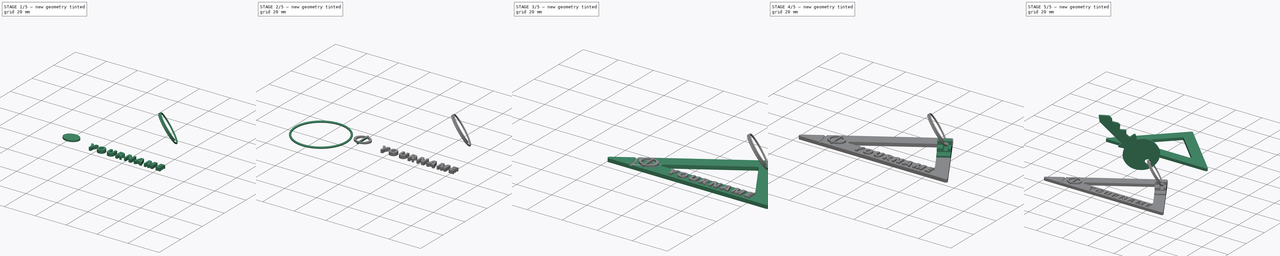
[diagram: build sequence overview — one tinted view per stage of 5, left to right]
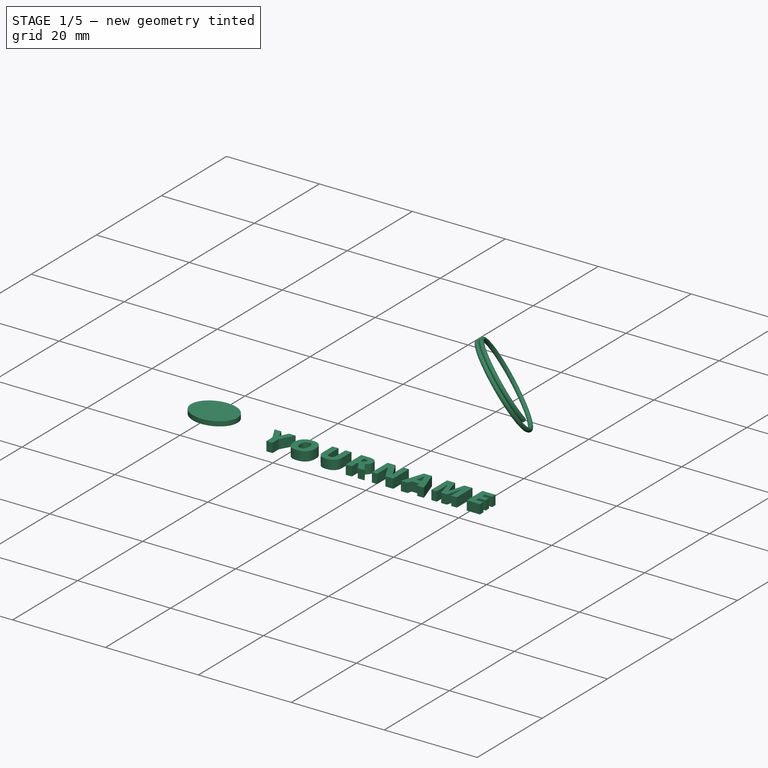
[diagram: stage 1 of 5 — iso view after this stage's code; geometry added in this stage tinted green]
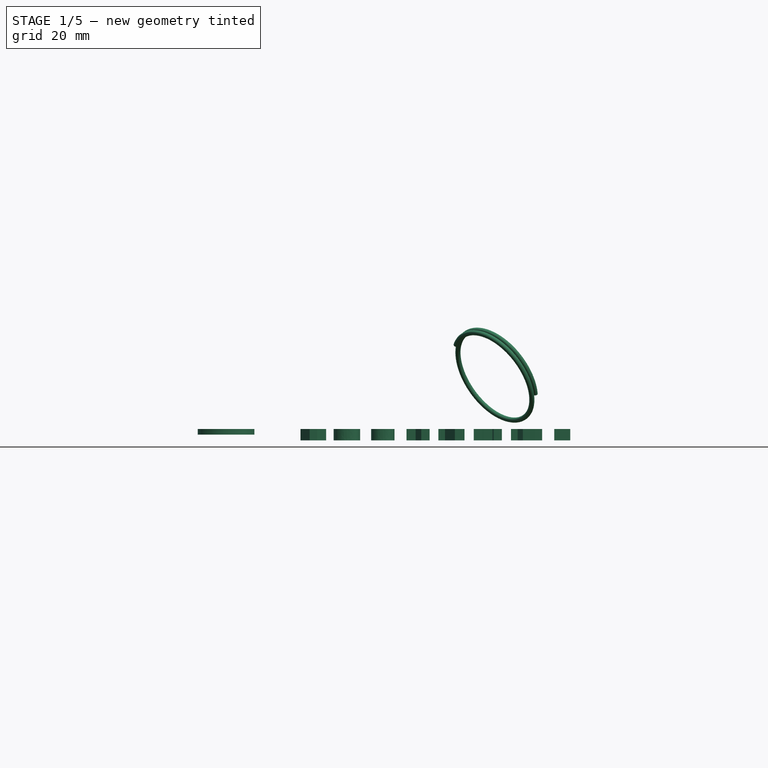
[diagram: stage 1 of 5 — front view after this stage's code; geometry added in this stage tinted green]
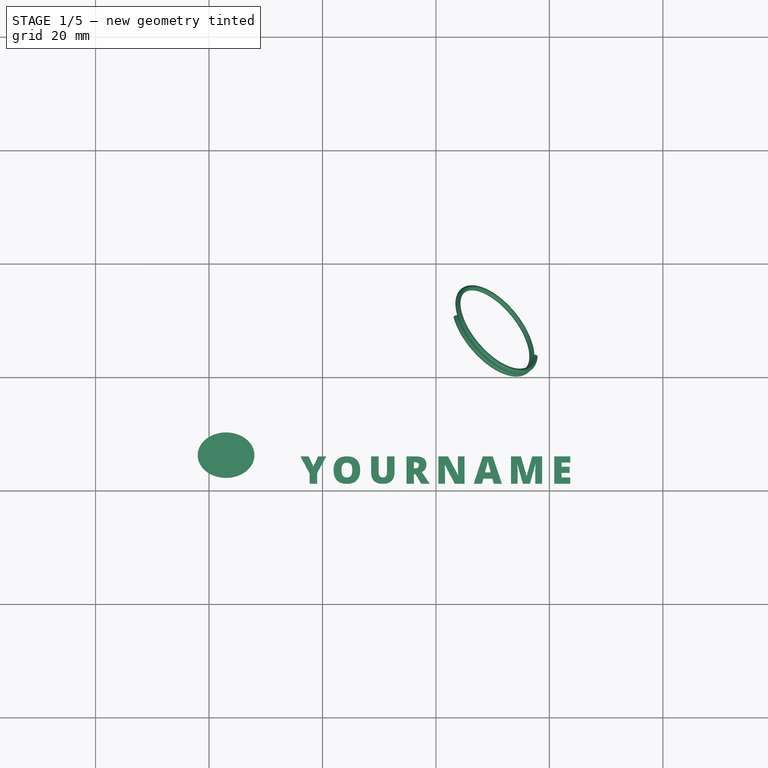
[diagram: stage 1 of 5 — top view after this stage's code; geometry added in this stage tinted green]
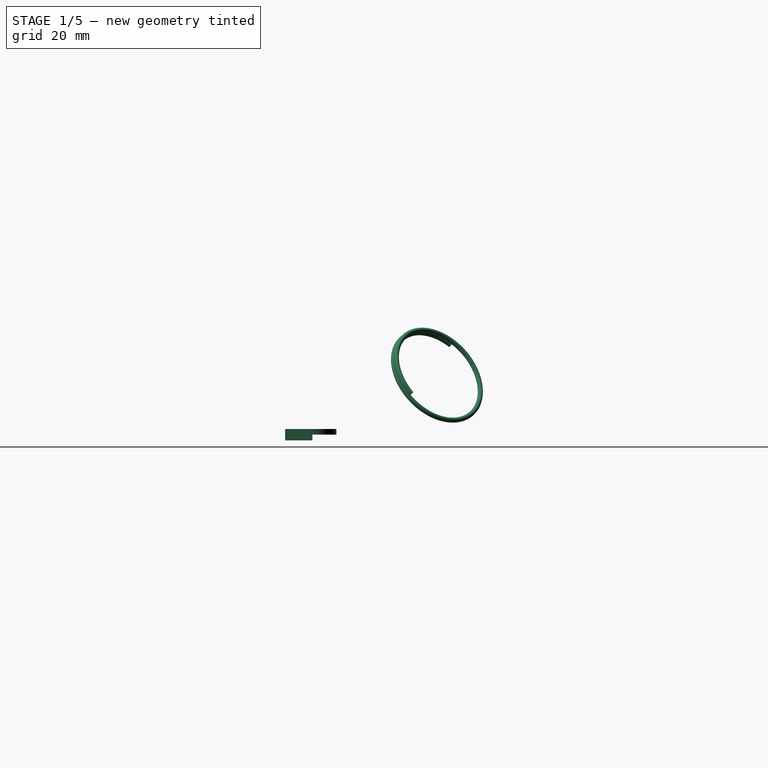
[diagram: stage 1 of 5 — right view after this stage's code; geometry added in this stage tinted green]
FCSTD DOCUMENT  (FreeCAD 0.15R4671 (Git))
Label: carabon aureo
License: All rights reserved
LicenseURL: http://en.wikipedia.org/wiki/All_rights_reserved
objects: Part::Part2DObjectPython×9, Part::Extrusion×8, Part::Cut×5, Part::MultiFuse×3, Part::Feature×2, Part::Fillet×2, Sketcher::SketchObject×1, Part::Torus×1, Part::Helix×1, Part::Sweep×1, App::DocumentObjectGroup×1
note: 33 computed .brp shape members not serialized (recipe doc carries the construction recipe); baked Part::Feature solids carry a one-line shape summary decoded from their .brp

FEATURE [Part::Part2DObjectPython] Rectangle003  # Draft 2D object (typed FeaturePython)
  ChamferSize = 0
  FilletRadius = 0
  Height = 10
  Length = 0.8
  MakeFace = true
  Placement = pos=(102.604,1.27893,2) rot=(0,0,1;0rad)
FEATURE [Part::Part2DObjectPython] Ellipse  # Draft 2D object (typed FeaturePython)
  FirstAngle = 0
  LastAngle = 0
  MajorRadius = 5
  MakeFace = true
  MinorRadius = 4
  Placement = pos=(103.004,6.27893,2) rot=(0,0,1;0rad)
FEATURE [Part::Part2DObjectPython] Ellipse001  # Draft 2D object (typed FeaturePython)
  FirstAngle = 0
  LastAngle = 0
  MajorRadius = 3.5
  MakeFace = true
  MinorRadius = 3.3
  Placement = pos=(103.004,6.27893,2) rot=(0,0,1;0rad)
FEATURE [Part::Extrusion] Extrude005
  Base = -> Ellipse
  Dir = (0,0,1)
  Solid = true
FEATURE [Part::Extrusion] Extrude006
  Base = -> Ellipse001
  Dir = (0,0,1)
  Solid = true
FEATURE [Part::Part2DObjectPython] ShapeString  label="click, abajo en data, cambia String YOURNAME "  # Draft 2D object (typed FeaturePython)
  FontFile = C:/Program Files/FreeCAD 0.15/bin/OpenSans-ExtraBold.ttf
  Placement = pos=(116.131,1.25315,1) rot=(0,0,1;0rad)
  Size = 6.16
  String = YOURNAME
  Tracking = 500
FEATURE [Part::Extrusion] Extrude008  label="YOURNAME (click, para cambiar  YOURNAME)"
  Base = -> ShapeString
  Dir = (0,0,2)
  Solid = true
FEATURE [Part::Part2DObjectPython] Circle  # Draft 2D object (typed FeaturePython)
  FirstAngle = 0
  LastAngle = 0
  MakeFace = true
  Placement = pos=(9,0,0) rot=(1,0,0;1.5708rad)
  Radius = 0.45
FEATURE [Part::Helix] Helix
  Angle = 0
  Height = 1.3
  LocalCoord = 0
  Pitch = 0.9
  Radius = 9
  Style = 1
FEATURE [Part::Sweep] Sweep
  Frenet = true
  Placement = pos=(150.843,28.4407,12.7542) rot=(0.919561,-0.193256,-0.34214;2.33951rad)
  Sections = -> [Circle]
  Solid = true
  Spine = -> Helix [Edge2,Edge1]
  Transition = 1
FEATURE [App::DocumentObjectGroup] Group  label="anilla"
  Group = -> [Sweep,Helix]
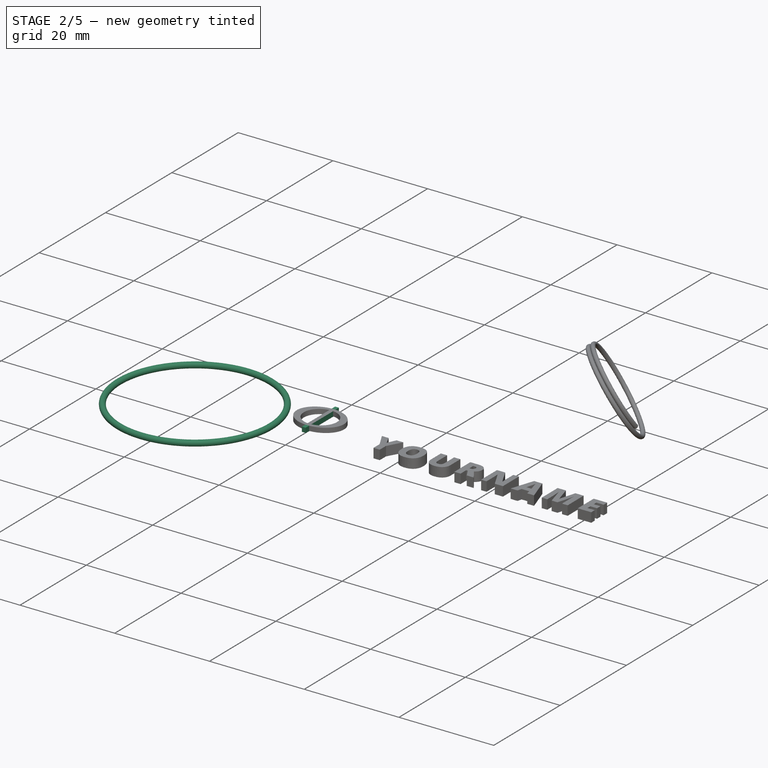
[diagram: stage 2 of 5 — iso view after this stage's code; geometry added in this stage tinted green]
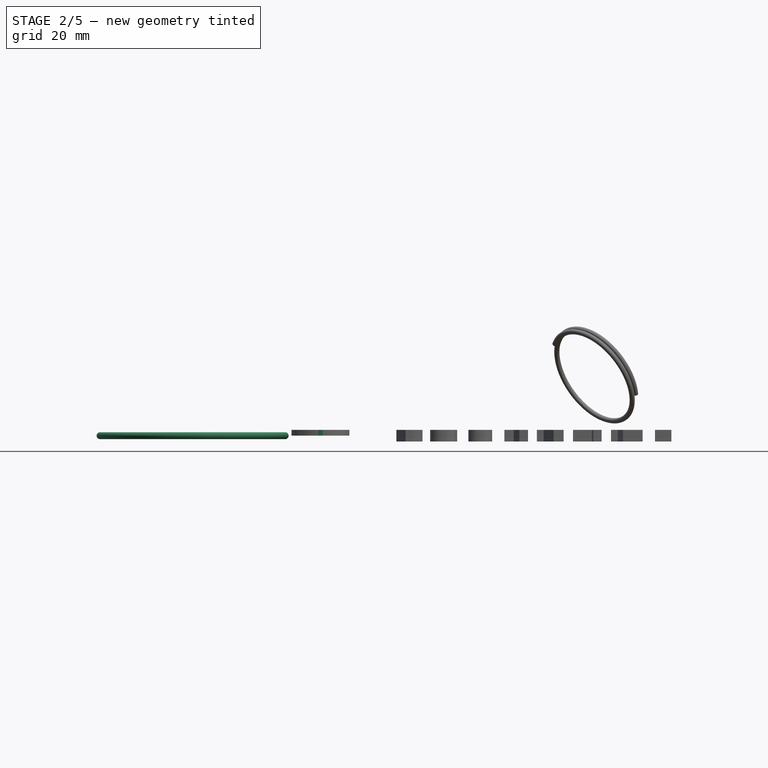
[diagram: stage 2 of 5 — front view after this stage's code; geometry added in this stage tinted green]
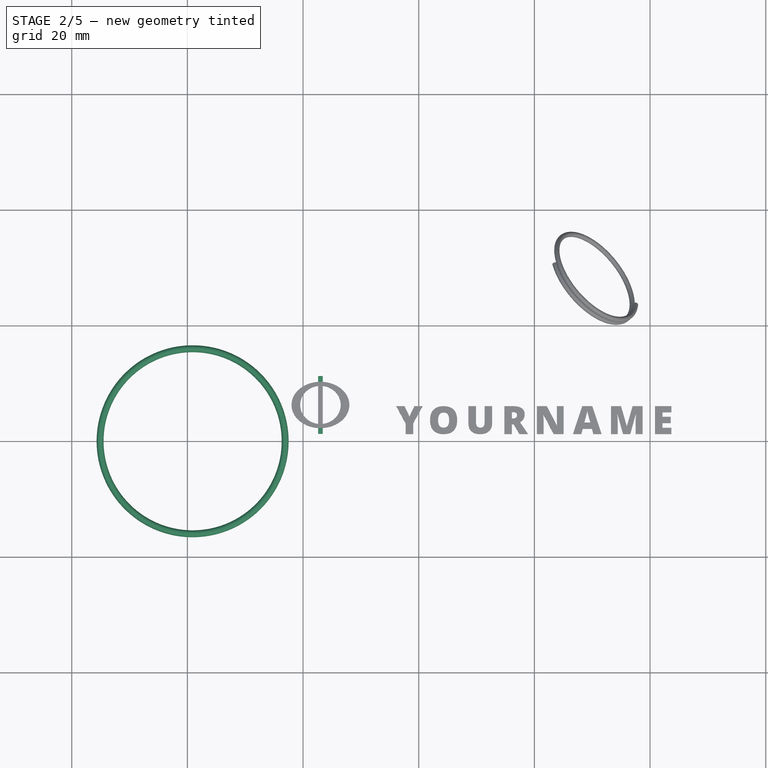
[diagram: stage 2 of 5 — top view after this stage's code; geometry added in this stage tinted green]
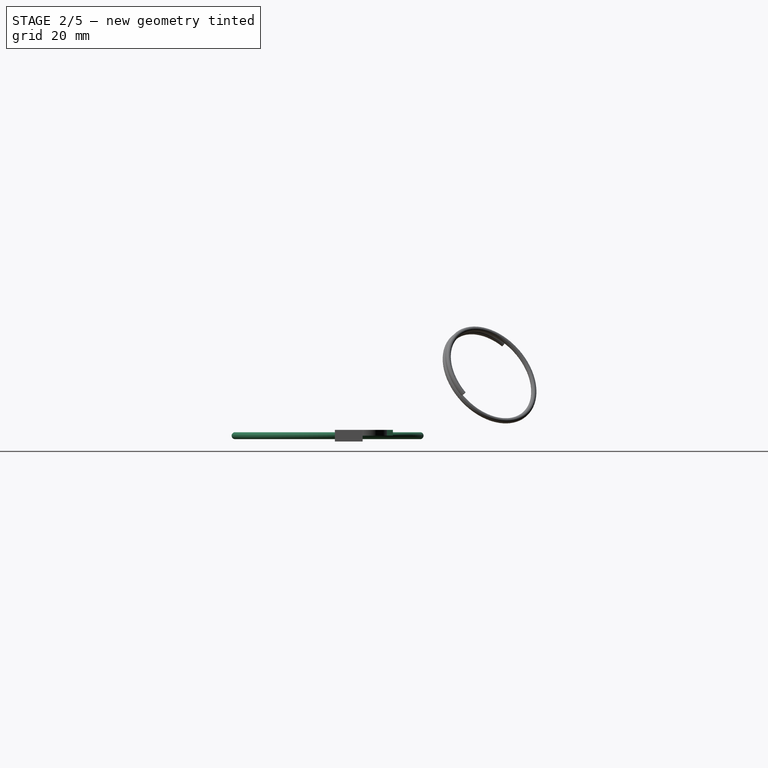
[diagram: stage 2 of 5 — right view after this stage's code; geometry added in this stage tinted green]
FEATURE [Part::Torus] Torus
  Angle1 = -180
  Angle2 = 180
  Angle3 = 360
  Placement = pos=(80.9017,0,2) rot=(0,0,1;0rad)
  Radius1 = 16
  Radius2 = 0.6
FEATURE [Part::Extrusion] Extrude007
  Base = -> Rectangle003
  Dir = (0,0,1)
  Solid = true
FEATURE [Part::Cut] Cut003
  Base = -> Extrude005
  Tool = -> Extrude006
FEATURE [Part::MultiFuse] Fusion001  label="phi"
  Shapes = -> [Cut003,Extrude007]
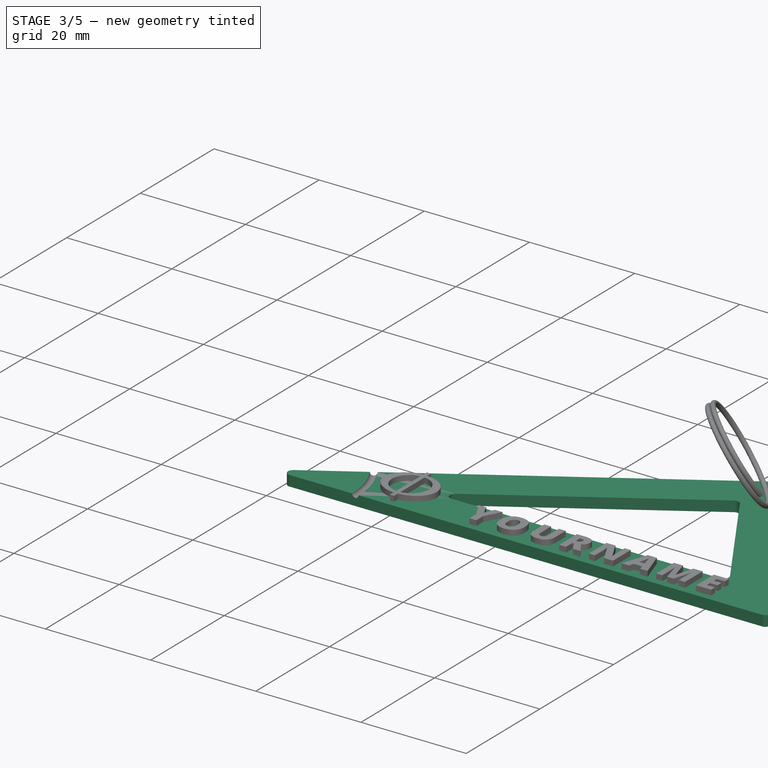
[diagram: stage 3 of 5 — iso view after this stage's code; geometry added in this stage tinted green]
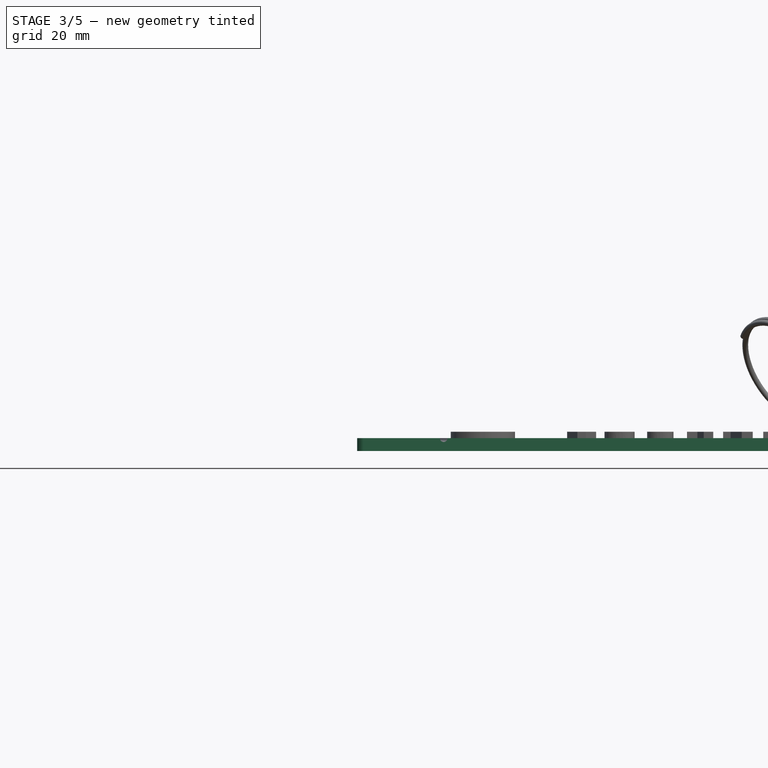
[diagram: stage 3 of 5 — front view after this stage's code; geometry added in this stage tinted green]
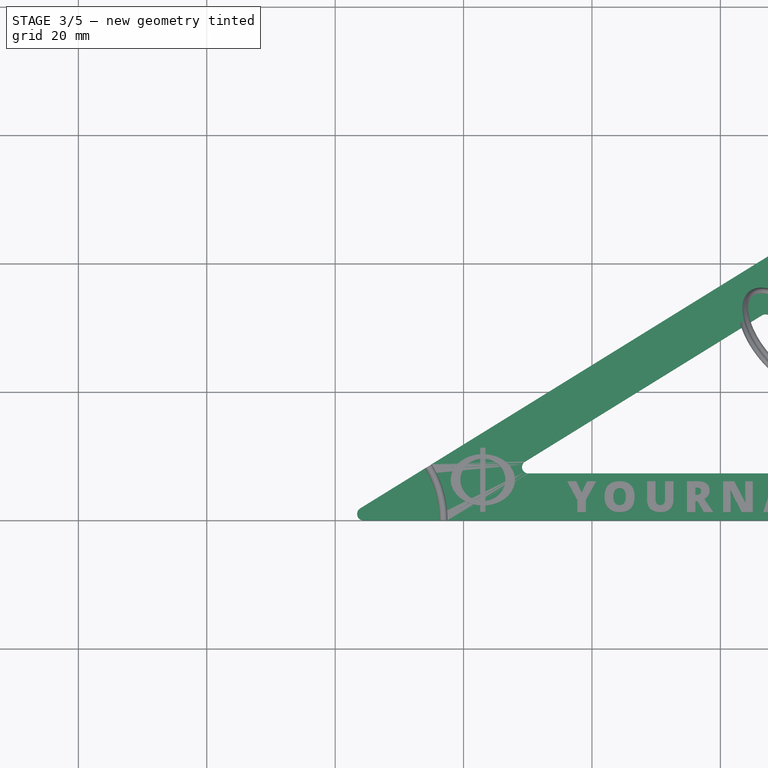
[diagram: stage 3 of 5 — top view after this stage's code; geometry added in this stage tinted green]
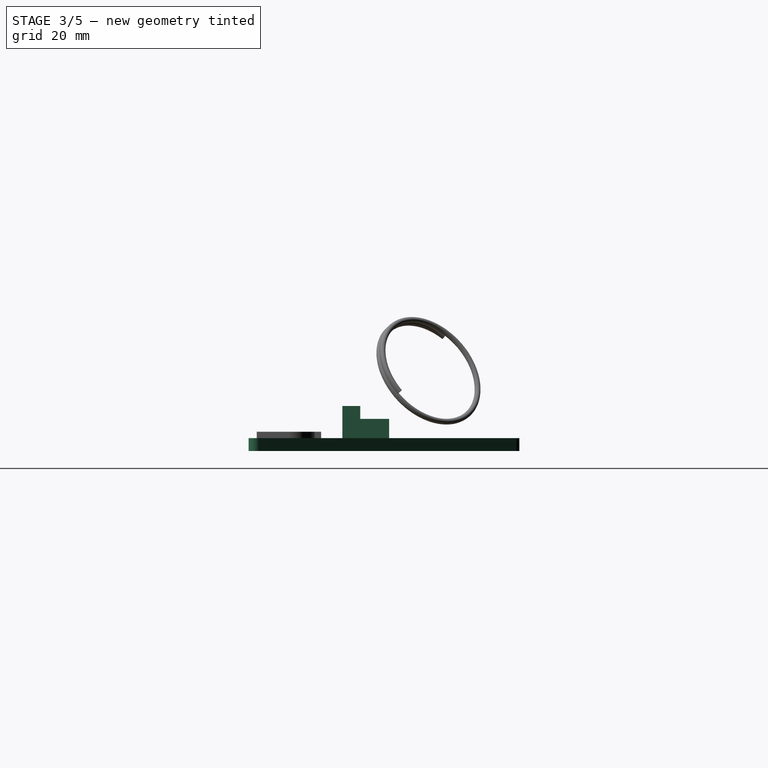
[diagram: stage 3 of 5 — right view after this stage's code; geometry added in this stage tinted green]
FEATURE [Part::Extrusion] Extrude002
  Base = -> Rectangle001
  Dir = (0,0,5)
  Solid = true
FEATURE [Part::Extrusion] Extrude003
  Base = -> Rectangle
  Dir = (0,0,3)
  Solid = true
FEATURE [Part::Fillet] Fillet001  label="cartabon aureo redondeado"
  Base = -> Solid
  Edges = 3 edges r=1: [Edge1,Edge2,Edge5]
  Placement = pos=(149.721,42.5325,0) rot=(0,0,1;3.69517rad)
FEATURE [Part::Cut] Cut002  label="cartabon magico marcado"
  Base = -> Fillet001
  Tool = -> Torus
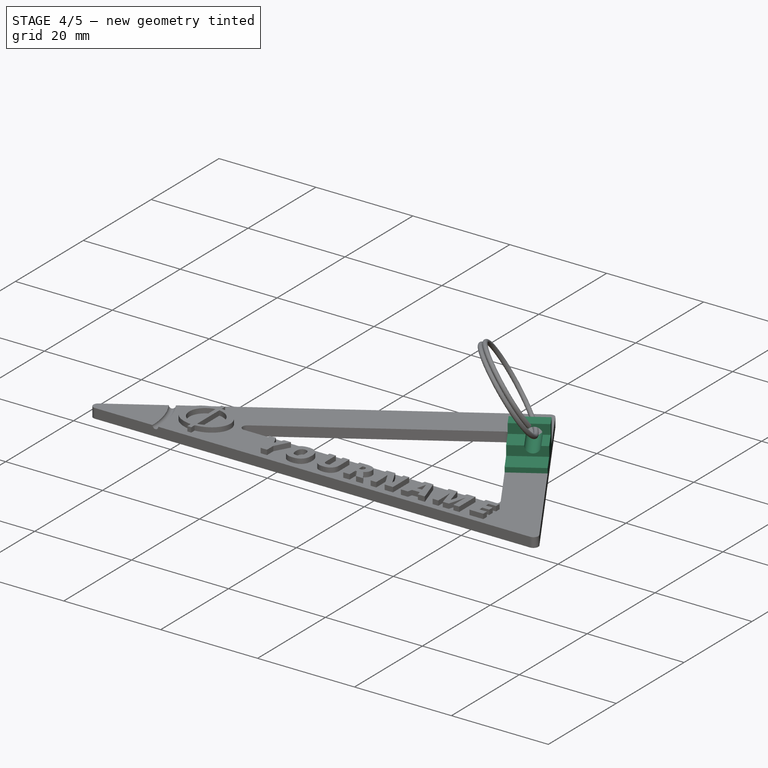
[diagram: stage 4 of 5 — iso view after this stage's code; geometry added in this stage tinted green]
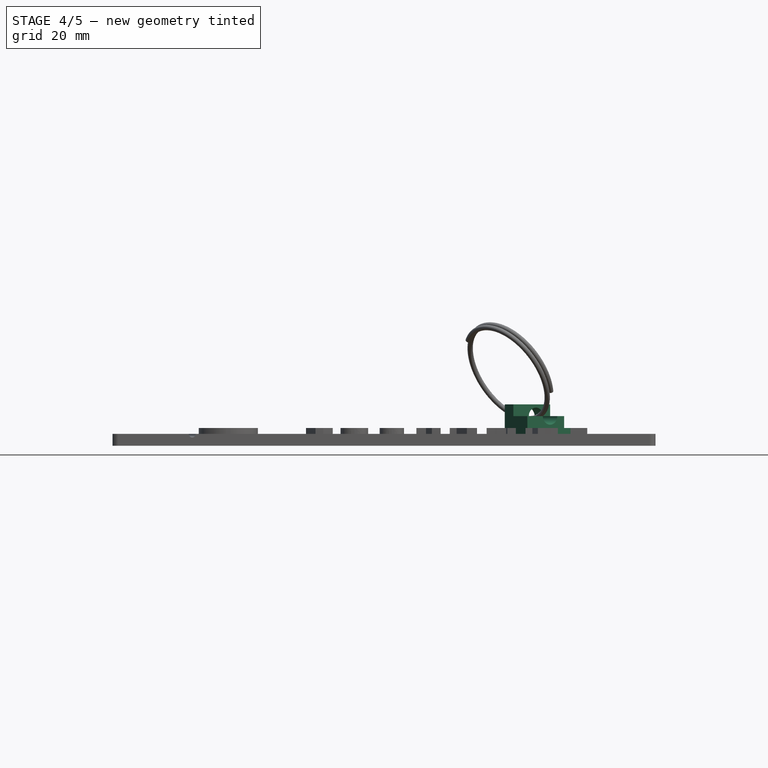
[diagram: stage 4 of 5 — front view after this stage's code; geometry added in this stage tinted green]
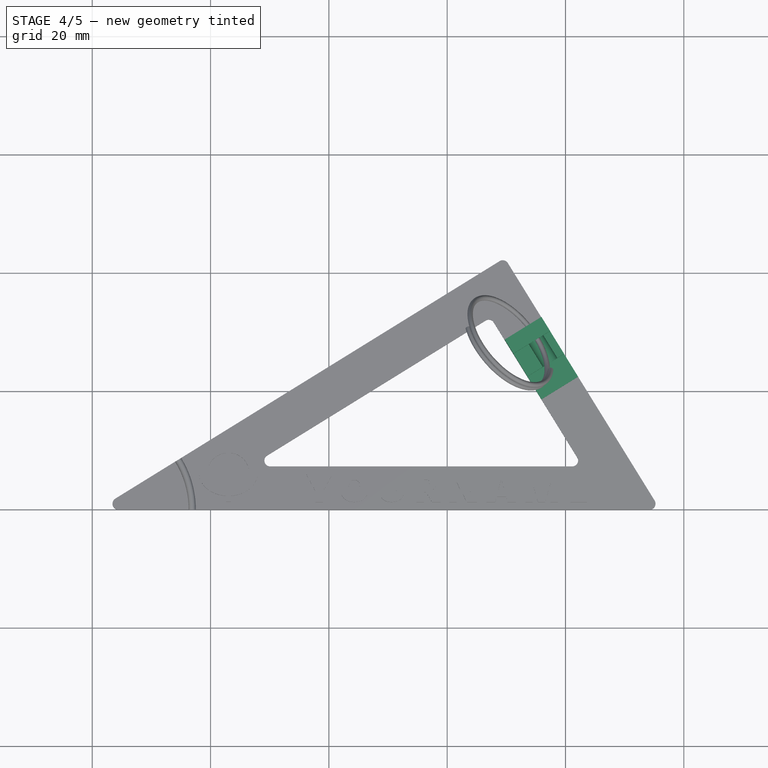
[diagram: stage 4 of 5 — top view after this stage's code; geometry added in this stage tinted green]
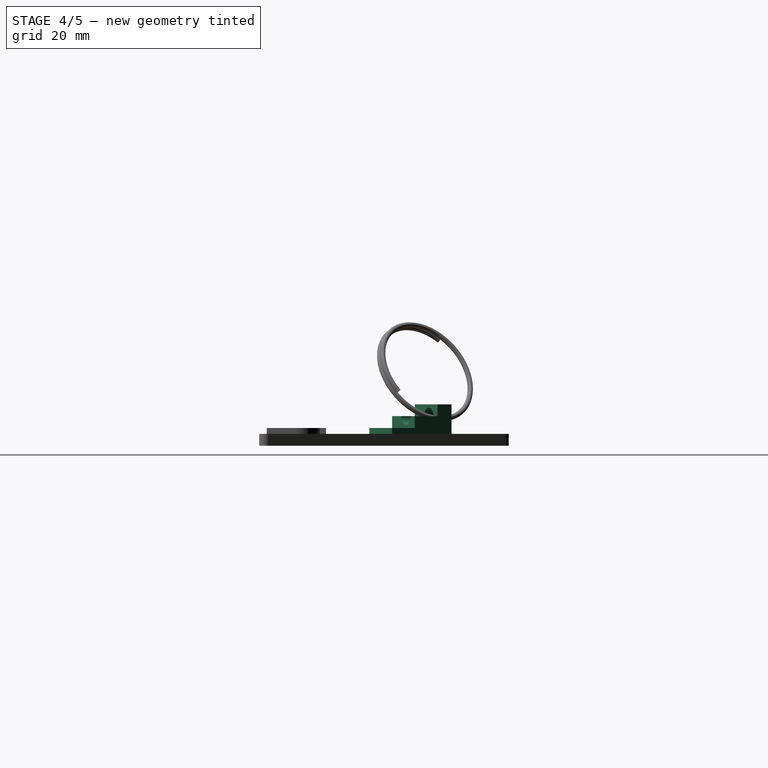
[diagram: stage 4 of 5 — right view after this stage's code; geometry added in this stage tinted green]
FEATURE [Part::Part2DObjectPython] Circle001  # Draft 2D object (typed FeaturePython)
  FirstAngle = 0
  LastAngle = 0
  MakeFace = true
  Placement = pos=(2.7864,21.8847,5) rot=(0.57735,0.57735,0.57735;4.18879rad)
  Radius = 1.44
FEATURE [Part::Part2DObjectPython] Rectangle  # Draft 2D object (typed FeaturePython)
  ChamferSize = 0
  FilletRadius = 0
  Height = 4.5085
  Length = 7.2949
  MakeFace = true
  Placement = pos=(0,17.3762,2) rot=(0,0,1;0rad)
FEATURE [Part::Part2DObjectPython] Rectangle001  # Draft 2D object (typed FeaturePython)
  ChamferSize = 0
  FilletRadius = 0
  Height = 2.7864
  Length = 7.2949
  MakeFace = true
  Placement = pos=(0,14.5898,2) rot=(0,0,1;0rad)
FEATURE [Part::Part2DObjectPython] Rectangle002  # Draft 2D object (typed FeaturePython)
  ChamferSize = 0
  FilletRadius = 0
  Height = -11.8034
  Length = 7.2949
  MakeFace = true
  Placement = pos=(0,26.3932,2) rot=(0,0,1;0rad)
FEATURE [Part::Extrusion] Extrude
  Base = -> Rectangle002
  Dir = (0,0,1)
  Solid = true
FEATURE [Part::Extrusion] Extrude004  label="taladro"
  Base = -> Circle001
  Dir = (0,-10,0)
  Solid = true
FEATURE [Part::MultiFuse] Fusion  label="anclaje"
  Shapes = -> [Extrude003,Extrude002,Extrude]
FEATURE [Part::Cut] Cut001  label="anclaje taladrado"
  Base = -> Fusion
  Placement = pos=(148.256,44.9028,0) rot=(0,0,1;3.69517rad)
  Tool = -> Extrude004
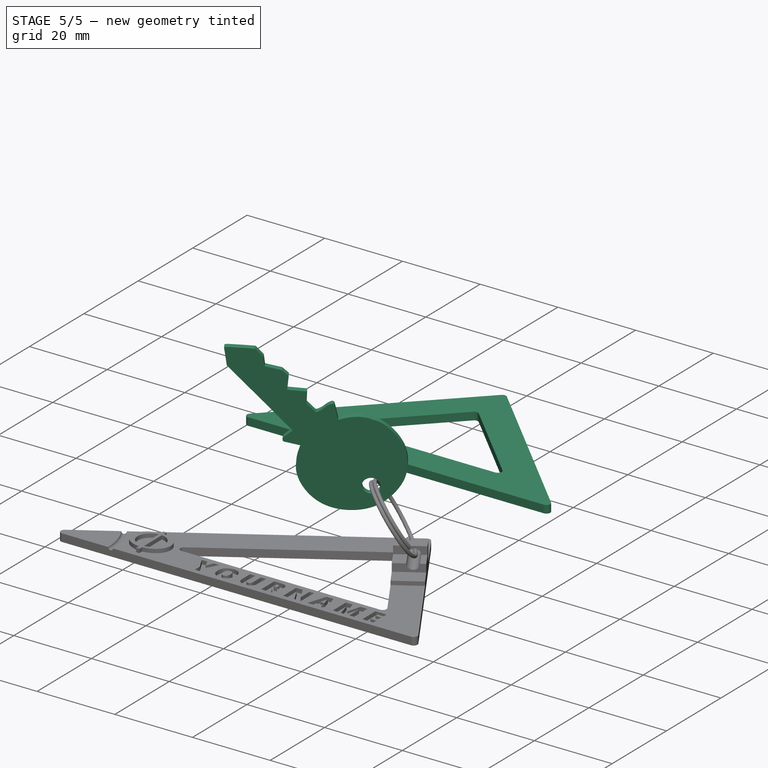
[diagram: stage 5 of 5 — iso view after this stage's code; geometry added in this stage tinted green]
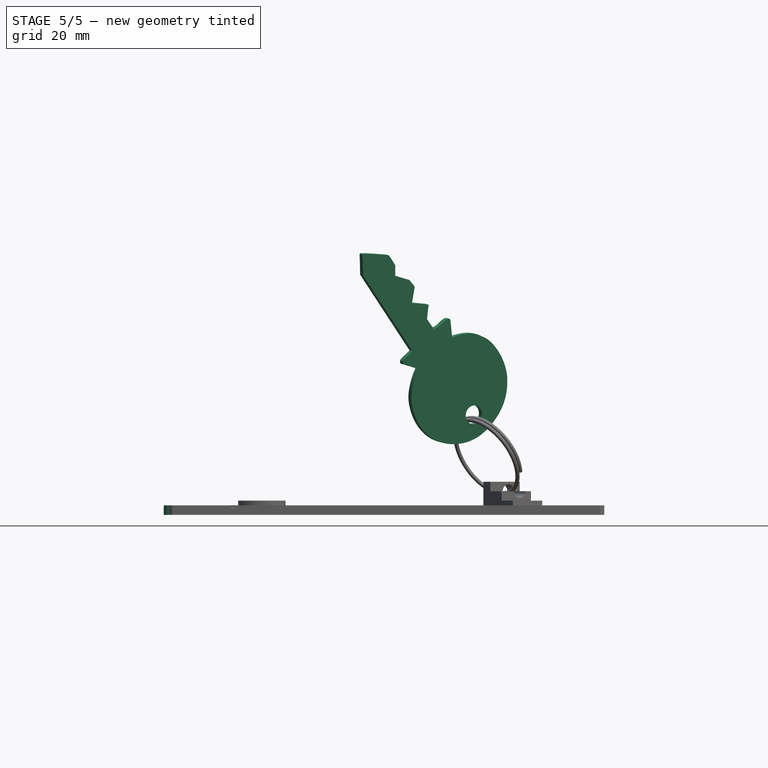
[diagram: stage 5 of 5 — front view after this stage's code; geometry added in this stage tinted green]
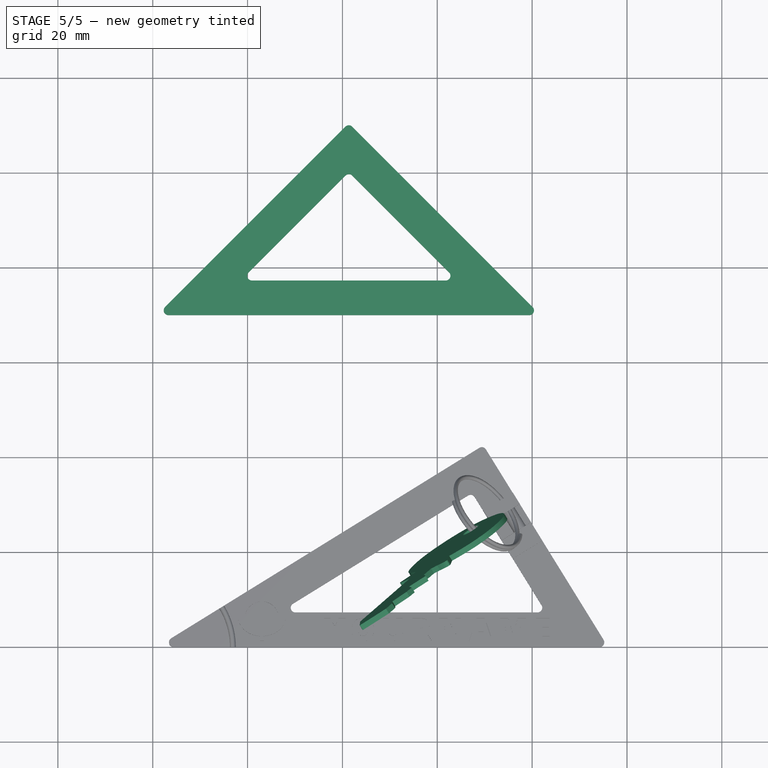
[diagram: stage 5 of 5 — top view after this stage's code; geometry added in this stage tinted green]
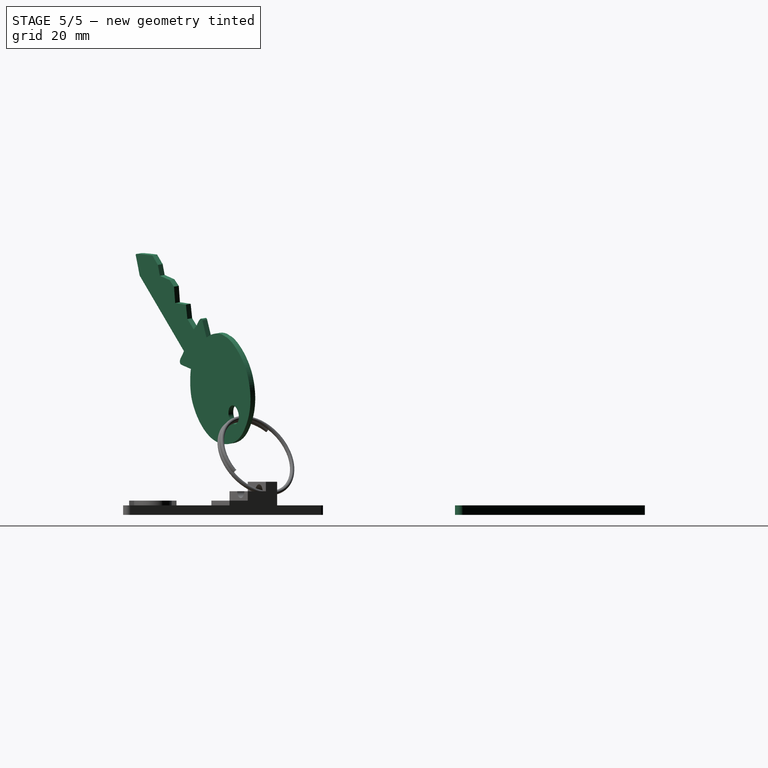
[diagram: stage 5 of 5 — right view after this stage's code; geometry added in this stage tinted green]
FEATURE [Sketcher::SketchObject] Sketch
  sketch-geometry (36):
    g0: LineSegment [constr] StartX=0 StartY=0 StartZ=0 EndX=50 EndY=0 EndZ=0
    g1: LineSegment [constr] StartX=50 StartY=0 StartZ=0 EndX=50 EndY=50 EndZ=0
    g2: LineSegment [constr] StartX=50 StartY=50 StartZ=0 EndX=0 EndY=50 EndZ=0
    g3: LineSegment StartX=0 StartY=50 StartZ=0 EndX=0 EndY=0 EndZ=0
    g4: GeomPoint [constr] X=25 Y=0 Z=0
    g5: Circle [constr] CenterX=25 CenterY=0 CenterZ=0 NormalX=0 NormalY=0 NormalZ=1 Radius=55.9017
    g6: LineSegment StartX=0 StartY=50 StartZ=0 EndX=80.9017 EndY=0 EndZ=0
    g7: LineSegment StartX=0 StartY=0 StartZ=0 EndX=80.9017 EndY=0 EndZ=0
    g8: LineSegment StartX=7.2949 StartY=35.1222 StartZ=0 EndX=7.2949 EndY=8.2949 EndZ=0
    g9: LineSegment StartX=8.82063 StartY=35.9729 StartZ=0 EndX=52.2282 EndY=9.14555 EndZ=0
    g10: LineSegment StartX=8.2949 StartY=7.2949 StartZ=0 EndX=51.7024 EndY=7.2949 EndZ=0
    g11: LineSegment [constr] StartX=0 StartY=25 StartZ=0 EndX=7.2949 EndY=25 EndZ=0
    g12: LineSegment [constr] StartX=40.4508 StartY=7.2949 StartZ=0 EndX=40.4508 EndY=0 EndZ=0
    g13: LineSegment [constr] StartX=36.6157 StartY=18.7946 StartZ=0 EndX=40.4508 EndY=25 EndZ=0
    g14: LineSegment [constr] StartX=50 StartY=50 StartZ=0 EndX=80.9017 EndY=50 EndZ=0
    g15: LineSegment [constr] StartX=80.9017 StartY=50 StartZ=0 EndX=80.9017 EndY=0 EndZ=0
    g16: GeomPoint [constr] X=50 Y=19.0983 Z=0
    g17: LineSegment [constr] StartX=50 StartY=19.0983 StartZ=0 EndX=80.9017 EndY=19.0983 EndZ=0
    g18: LineSegment [constr] StartX=50 StartY=0 StartZ=0 EndX=69.0983 EndY=19.0983 EndZ=0
    g19: LineSegment [constr] StartX=69.0983 StartY=19.0983 StartZ=0 EndX=69.0983 EndY=7.2949 EndZ=0
    g20: LineSegment [constr] StartX=69.0983 StartY=7.2949 StartZ=0 EndX=69.0983 EndY=0 EndZ=0
    g21: ArcOfCircle CenterX=8.2949 CenterY=35.1222 CenterZ=0 NormalX=0 NormalY=0 NormalZ=1 Radius=1 StartAngle=1.01722 EndAngle=3.14159
    g22: ArcOfCircle CenterX=51.7024 CenterY=8.2949 CenterZ=0 NormalX=0 NormalY=0 NormalZ=1 Radius=1 StartAngle=4.71239 EndAngle=7.30041
    g23: ArcOfCircle CenterX=8.2949 CenterY=8.2949 CenterZ=0 NormalX=0 NormalY=0 NormalZ=1 Radius=1 StartAngle=3.14159 EndAngle=4.71239
    g24: LineSegment StartX=0 StartY=70 StartZ=0 EndX=80.9017 EndY=70 EndZ=0
    g25: LineSegment StartX=80.9017 StartY=70 StartZ=0 EndX=40.4508 EndY=110.451 EndZ=0
    g26: LineSegment StartX=40.4508 StartY=110.451 StartZ=0 EndX=0 EndY=70 EndZ=0
    g27: LineSegment StartX=19.3186 StartY=79.002 StartZ=0 EndX=39.7437 EndY=99.4272 EndZ=0
    g28: LineSegment StartX=41.158 StartY=99.4272 StartZ=0 EndX=61.5831 EndY=79.002 EndZ=0
    g29: LineSegment StartX=60.876 StartY=77.2949 StartZ=0 EndX=20.0257 EndY=77.2949 EndZ=0
    g30: ArcOfCircle CenterX=40.4508 CenterY=98.7201 CenterZ=0 NormalX=0 NormalY=0 NormalZ=1 Radius=1 StartAngle=0.785398 EndAngle=2.35619
    g31: ArcOfCircle CenterX=60.876 CenterY=78.2949 CenterZ=0 NormalX=0 NormalY=0 NormalZ=1 Radius=1 StartAngle=4.71239 EndAngle=7.06858
    g32: ArcOfCircle CenterX=20.0257 CenterY=78.2949 CenterZ=0 NormalX=0 NormalY=0 NormalZ=1 Radius=1 StartAngle=2.35619 EndAngle=4.71239
    g33: LineSegment [constr] StartX=40.4508 StartY=77.2949 StartZ=0 EndX=40.4508 EndY=70 EndZ=0
    g34: LineSegment [constr] StartX=29.5312 StartY=89.2146 StartZ=0 EndX=24.3729 EndY=94.3729 EndZ=0
    g35: LineSegment [constr] StartX=51.3705 StartY=89.2146 StartZ=0 EndX=56.5288 EndY=94.3729 EndZ=0
  constraints (102):
    c: Coincident(g0,g1)
    c: Coincident(g1,g2)
    c: Coincident(g2,g3)
    c: Coincident(g3,g0)
    c: Horizontal(g0)
    c: Horizontal(g2)
    c: Vertical(g1)
    c: Vertical(g3)
    c: PointOnObject(g4,g0)
    c: Symmetric(g0,g0,g4)
    c: Coincident(g5,g4)
    c: PointOnObject(g1,g5)
    c: Equal(g2,g1)
    c: Coincident(g0,g-1)
    c: PointOnObject(g6,g5)
    c: Coincident(g6,g7)
    c: Coincident(g7,g-1)
    c: Coincident(g2,g6)
    c: Horizontal(g7)
    c: Horizontal(g10)
    c: Vertical(g8)
    c: Parallel(g9,g6)
    c: Horizontal(g11)
    c: PointOnObject(g11,g8)
    c: PointOnObject(g11,g3)
    c: Symmetric(g2,g-1,g11)
    c: Vertical(g12)
    c: PointOnObject(g12,g10)
    c: PointOnObject(g12,g7)
    c: Symmetric(g-1,g6,g12)
    c: Perpendicular(g6,g13)
    c: PointOnObject(g13,g6)
    c: PointOnObject(g13,g9)
    c: Symmetric(g2,g6,g13)
    c: Equal(g13,g11)
    c: Equal(g11,g12)
    c: Coincident(g14,g15)
    c: Vertical(g15)
    c: Horizontal(g14)
    c: Coincident(g1,g14)
    c: Coincident(g6,g15)
    c: PointOnObject(g16,g6)
    c: PointOnObject(g16,g1)
    c: Coincident(g16,g17)
    c: Horizontal(g17)
    c: PointOnObject(g17,g15)
    c: Coincident(g0,g18)
    c: Angle(g18,g7) = 2.35619
    c: PointOnObject(g18,g17)
    c: Coincident(g19,g18)
    c: Vertical(g19)
    c: PointOnObject(g19,g6)
    c: Vertical(g20)
    c: Coincident(g20,g19)
    c: PointOnObject(g20,g7)
    c: Equal(g12,g20)
    c: Tangent(g9,g21) = 1.5708
    c: Tangent(g8,g21) = -1.5708
    c: Radius(g21) = 1
    c: Tangent(g9,g22) = 1.5708
    c: Tangent(g10,g22) = -1.5708
    c: Tangent(g8,g23) = -1.5708
    c: Tangent(g10,g23) = -1.5708
    c: Equal(g23,g22)
    c: Equal(g22,g21)
    c: DistanceY(g3) = -50
    c: Coincident(g24,g25)
    c: Coincident(g25,g26)
    c: Coincident(g26,g24)
    c: PointOnObject(g24,g-2)
    c: Horizontal(g24)
    c: Equal(g24,g7)
    c: Angle(g24,g26) = 0.785398
    c: Angle(g25,g24) = 0.785398
    c: DistanceY(g24,g14) = -20
    c: Parallel(g27,g26)
    c: Parallel(g28,g25)
    c: Horizontal(g29)
    c: Tangent(g27,g30) = 1.5708
    c: Tangent(g28,g30) = 1.5708
    c: Tangent(g28,g31) = 1.5708
    c: Tangent(g29,g31) = 1.5708
    c: Tangent(g29,g32) = 1.5708
    c: Tangent(g27,g32) = 1.5708
    c: Equal(g30,g32)
    c: Equal(g32,g31)
    c: Radius(g30) = 1
    c: PointOnObject(g33,g29)
    c: Vertical(g33)
    c: PointOnObject(g33,g24)
    c: Symmetric(g29,g29,g33)
    c: Equal(g33,g12)
    c: PointOnObject(g34,g27)
    c: PointOnObject(g34,g26)
    c: Perpendicular(g26,g34)
    c: Symmetric(g27,g27,g34)
    c: Equal(g34,g33)
    c: PointOnObject(g35,g25)
    c: PointOnObject(g35,g28)
    c: Perpendicular(g25,g35)
    c: Equal(g35,g33)
    c: Symmetric(g28,g28,g35)
FEATURE [Part::Feature] Solid  label="cartabon magico"
  shape: bbox 80.9 x 50 x 2 mm, 11 faces (baked)
FEATURE [Part::Feature] Solid001  label="escuadra"
  shape: bbox 80.9 x 40.45 x 2 mm, 11 faces (baked)
FEATURE [Part::Fillet] Fillet  label="escuadra de apoyo"
  Base = -> Solid001
  Edges = 3 edges r=1: [Edge1,Edge2,Edge5]
  Placement = pos=(80.9017,0,0) rot=(0,0,1;0rad)
FEATURE [Part::Cut] Cut  label="llave llavero"
  Placement = pos=(140.239,18.1741,31.8477) rot=(0.498553,-0.575394,0.648357;2.9416rad)
FEATURE [Part::MultiFuse] Fusion002  label="cartabon magico sin YOURNAME"
  Shapes = -> [Cut002,Fusion001,Cut001]
FEATURE [Part::Cut] Cut004  label="cartabon magico (click cambiar Yourname)"
  Base = -> Fusion002
  Tool = -> Extrude008
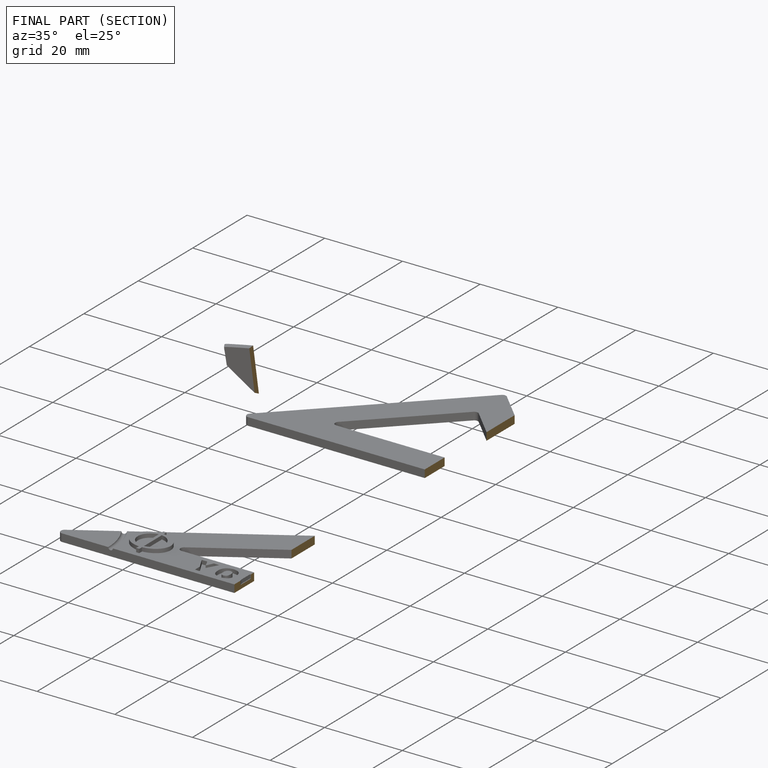
[diagram: finished part — half-section view (interior)]
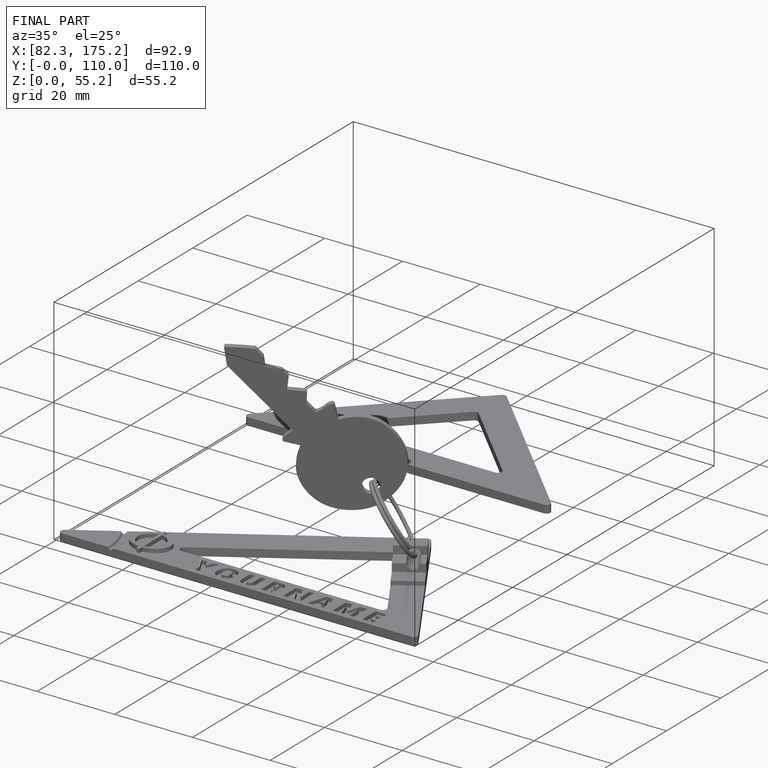
[diagram: finished part — iso view with bounding-box wireframe]
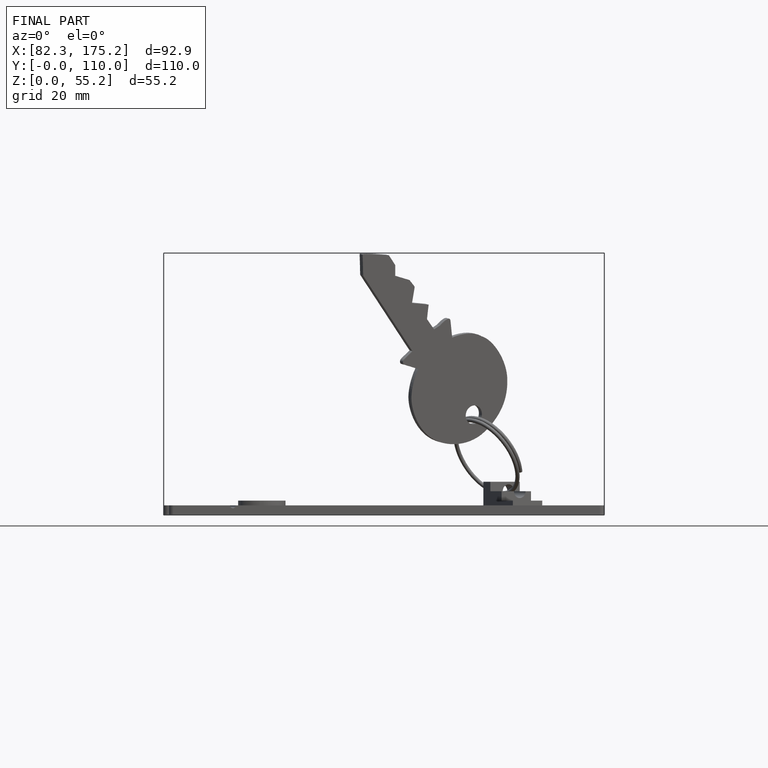
[diagram: finished part — front view with bounding-box wireframe]
